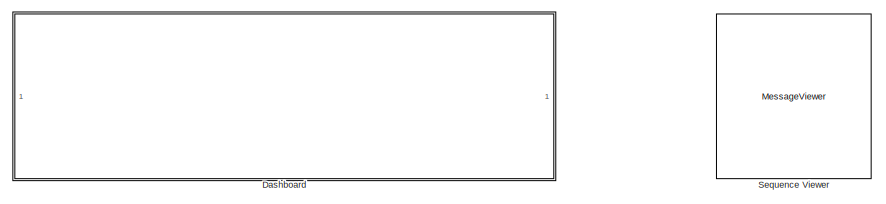
[diagram: root canvas - part 1/5, top center region]
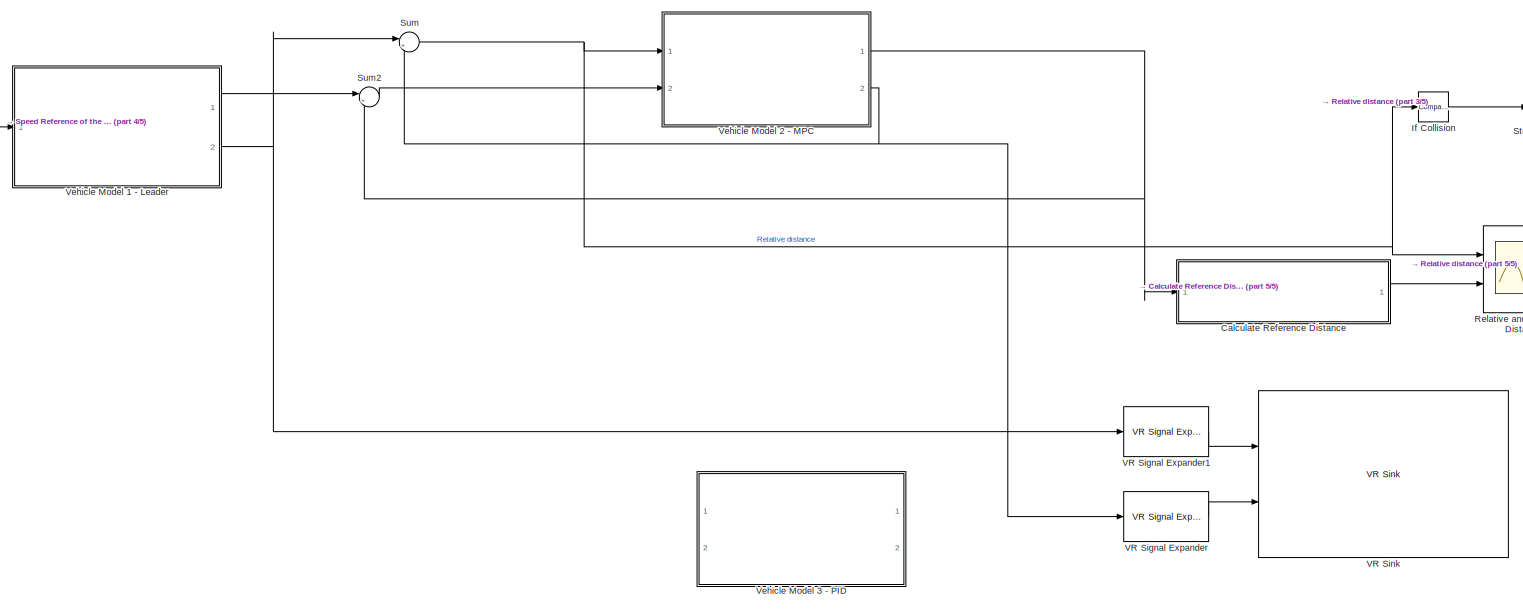
[diagram: root canvas - part 2/5, full width, middle band]
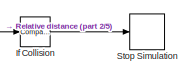
[diagram: root canvas - part 3/5, middle right region]
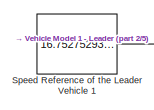
[diagram: root canvas - part 4/5, middle left region]
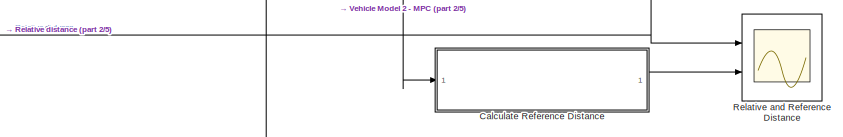
[diagram: root canvas - part 5/5, middle right region]
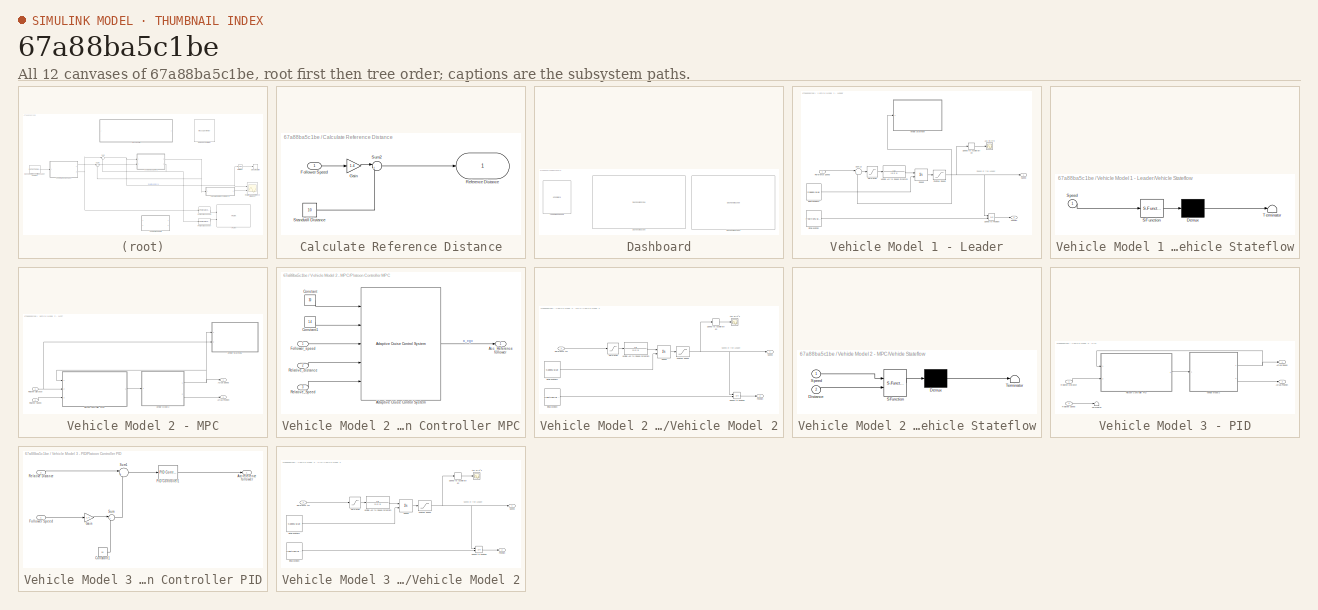
[diagram: thumbnail index - all 12 canvases of the model, root first then tree order]
MODEL slx_67a88ba5c1be
KIND model
CONFIG AbsTol = auto
CONFIG EnableMultiTasking = off
CONFIG FixedStep = auto
CONFIG MaxStep = auto
CONFIG MinStep = auto
CONFIG RelTol = 1e-3
CONFIG SampleTimeConstraint = Unconstrained
CONFIG Solver = VariableStepAuto
CONFIG SolverName = VariableStepAuto
CONFIG StartTime = 0.0
CONFIG StopTime = 100
BLOCK [SubSystem] Calculate Reference Distance
  Ports = [1, 1]
  RequestExecContextInheritance = off
BLOCK [Inport] Calculate Reference Distance/Follower Speed
BLOCK [Gain] Calculate Reference Distance/Gain
  Gain = 1.4
BLOCK [Outport] Calculate Reference Distance/Reference Distance
  VectorParamsAs1DForOutWhenUnconnected = off
BLOCK [Constant] Calculate Reference Distance/Standstill Distance
  Value = 10
BLOCK [Sum] Calculate Reference Distance/Sum2
  Inputs = |++
  Ports = [2, 1]
BLOCK [SubSystem] Dashboard
  Ports = []
  RequestExecContextInheritance = off
BLOCK [DashboardScope] Dashboard/Dashboard Scope
  Ymax = 200
  Ymin = -5
BLOCK [DashboardScope] Dashboard/Dashboard Scope1
  Ymax = 200
  Ymin = -5
BLOCK [KnobBlock] Dashboard/Leader Speed Knob
  ScaleMax = 50
  TickInterval = 5
BLOCK [Reference] If Collision  REF=simulink/Logic and Bit
Operations/Compare
To Constant
  Ports = [1, 1]
  SourceBlock = simulink/Logic and Bit\nOperations/Compare\nTo Constant
  SourceProductBaseCode = SL
  SourceType = Compare To Constant
BLOCK [Scope] Relative and Reference Distance
  Floating = off
  NumInputPorts = 2
  Ports = [2]
  ScopeSpecificationString = Simulink.scopes.TimeScopeBlockCfg('CurrentConfiguration', extmgr.ConfigurationSet(extmgr.Configuration('Core','General UI',true),extmgr.Configuration('Core','Source UI',true),extmgr.Configuration('Sources','WiredSimulink',true,'DataLoggingVariableName','ScopeData1'),extmgr.Configuration('Visuals','Time Domain',true,'SerializedDisplays',{struct('MinYLimReal','5.98138','MaxYLimReal','14.06125','YLab...<+1480ch>
BLOCK [MessageViewer] Sequence Viewer
BLOCK [Constant] Speed Reference of the Leader Vehicle 1
  Value = 16.75275293986003
BLOCK [Stop] Stop Simulation
BLOCK [Sum] Sum
  Inputs = |+-
  Ports = [2, 1]
BLOCK [Sum] Sum2
  Inputs = |+-
  Ports = [2, 1]
BLOCK [Reference] VR Signal Expander  REF=vrlib/VR Signal Expander
  Ports = [1, 1]
  SourceBlock = vrlib/VR Signal Expander
  SourceProductBaseCode = SL
  SourceType = VR Signal Expander
BLOCK [Reference] VR Signal Expander1  REF=vrlib/VR Signal Expander
  Ports = [1, 1]
  SourceBlock = vrlib/VR Signal Expander
  SourceProductBaseCode = SL
  SourceType = VR Signal Expander
BLOCK [Reference] VR Sink  REF=vrlib/VR Sink
  InstantiateOnLoad = on
  Ports = [2]
  SourceBlock = vrlib/VR Sink
  SourceProductBaseCode = SL
  SourceType = Virtual Reality Sink
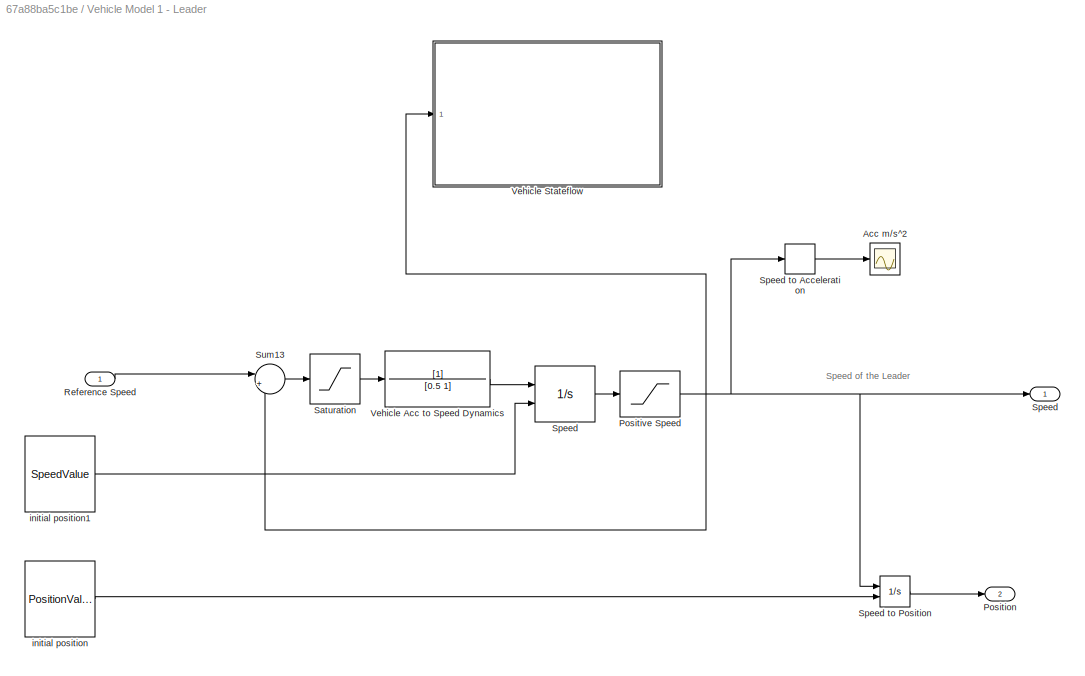
BLOCK [SubSystem] Vehicle Model 1 - Leader
  Ports = [1, 2]
  RequestExecContextInheritance = off
BLOCK [Scope] Vehicle Model 1 - Leader/Acc m//s^2
  Floating = off
  NumInputPorts = 1
  Ports = [1]
  ScopeSpecificationString = Simulink.scopes.TimeScopeBlockCfg('CurrentConfiguration', extmgr.ConfigurationSet(extmgr.Configuration('Core','General UI',true),extmgr.Configuration('Core','Source UI',true),extmgr.Configuration('Sources','WiredSimulink',true,'DataLoggingVariableName','ScopeData1','DataLoggingLimitDataPoints',true,'DataLoggingSaveFormat','Array','DataLoggingDecimation','1','DataLoggingDecimateData',true),extmgr.C...<+1505ch>
BLOCK [Outport] Vehicle Model 1 - Leader/Position
  Port = 2
  VectorParamsAs1DForOutWhenUnconnected = off
BLOCK [Saturate] Vehicle Model 1 - Leader/Positive Speed
  LowerLimit = 0
  UpperLimit = inf
BLOCK [Inport] Vehicle Model 1 - Leader/Reference Speed
BLOCK [Saturate] Vehicle Model 1 - Leader/Saturation
  LowerLimit = -3
  UpperLimit = 2
BLOCK [Integrator] Vehicle Model 1 - Leader/Speed
  InitialCondition = SpeedValue
  InitialConditionSource = external
  Ports = [2, 1]
BLOCK [Outport] Vehicle Model 1 - Leader/Speed 
  VectorParamsAs1DForOutWhenUnconnected = off
BLOCK [Derivative] Vehicle Model 1 - Leader/Speed to Acceleration
BLOCK [Integrator] Vehicle Model 1 - Leader/Speed to Position
  InitialCondition = Vehicle1.position
  InitialConditionSource = external
  Ports = [2, 1]
BLOCK [Sum] Vehicle Model 1 - Leader/Sum13
  Inputs = |+-
  Ports = [2, 1]
BLOCK [TransferFcn] Vehicle Model 1 - Leader/Vehicle Acc to Speed Dynamics
  Denominator = [0.5 1]
BLOCK [SubSystem] Vehicle Model 1 - Leader/Vehicle Stateflow
  ErrorFcn = Stateflow.Translate.translate
  PermitHierarchicalResolution = ExplicitOnly
  Ports = [1]
  RequestExecContextInheritance = off
  SFBlockType = Chart
  TreatAsAtomicUnit = on
BLOCK [Demux] Vehicle Model 1 - Leader/Vehicle Stateflow/ Demux 
  Outputs = 1
  Ports = [1, 1]
BLOCK [S-Function] Vehicle Model 1 - Leader/Vehicle Stateflow/ SFunction 
  EnableBusSupport = off
  FunctionName = sf_sfun
  PortCounts = [1 1]
  Ports = [1, 1]
  SFcnIsStateOwnerBlock = off
  SFunctionDeploymentMode = off
  Tag = Stateflow S-Function 3
BLOCK [Terminator] Vehicle Model 1 - Leader/Vehicle Stateflow/ Terminator 
BLOCK [Inport] Vehicle Model 1 - Leader/Vehicle Stateflow/Speed
BLOCK [Constant] Vehicle Model 1 - Leader/initial position
  Value = PositionValue
BLOCK [Constant] Vehicle Model 1 - Leader/initial position1
  Value = SpeedValue
BLOCK [SubSystem] Vehicle Model 2 - MPC
  Ports = [2, 2]
  RequestExecContextInheritance = off
BLOCK [Outport] Vehicle Model 2 - MPC/Actual Position
  Port = 2
  VectorParamsAs1DForOutWhenUnconnected = off
BLOCK [Outport] Vehicle Model 2 - MPC/Actual Speed
  VectorParamsAs1DForOutWhenUnconnected = off
BLOCK [SubSystem] Vehicle Model 2 - MPC/Platoon Controller MPC
  Ports = [3, 1]
  RequestExecContextInheritance = off
BLOCK [Outport] Vehicle Model 2 - MPC/Platoon Controller MPC/Acc_Reference follower
  VectorParamsAs1DForOutWhenUnconnected = off
BLOCK [Reference] Vehicle Model 2 - MPC/Platoon Controller MPC/Adaptive Cruise Control System  REF=mpcadaslib/Adaptive Cruise Control System
  Ports = [5, 1]
  SourceBlock = mpcadaslib/Adaptive Cruise Control System
  SourceProductBaseCode = MP
  SourceType = Adaptive cruise control (ACC) system
BLOCK [Constant] Vehicle Model 2 - MPC/Platoon Controller MPC/Constant
  Value = 30
BLOCK [Constant] Vehicle Model 2 - MPC/Platoon Controller MPC/Constant1
  Value = 1.4
BLOCK [Inport] Vehicle Model 2 - MPC/Platoon Controller MPC/Follower_speed
BLOCK [Inport] Vehicle Model 2 - MPC/Platoon Controller MPC/Relative_Speed
  Port = 3
BLOCK [Inport] Vehicle Model 2 - MPC/Platoon Controller MPC/Relative_distance
  Port = 2
BLOCK [Inport] Vehicle Model 2 - MPC/Relative Distance
BLOCK [Inport] Vehicle Model 2 - MPC/Relative Speed
  Port = 2
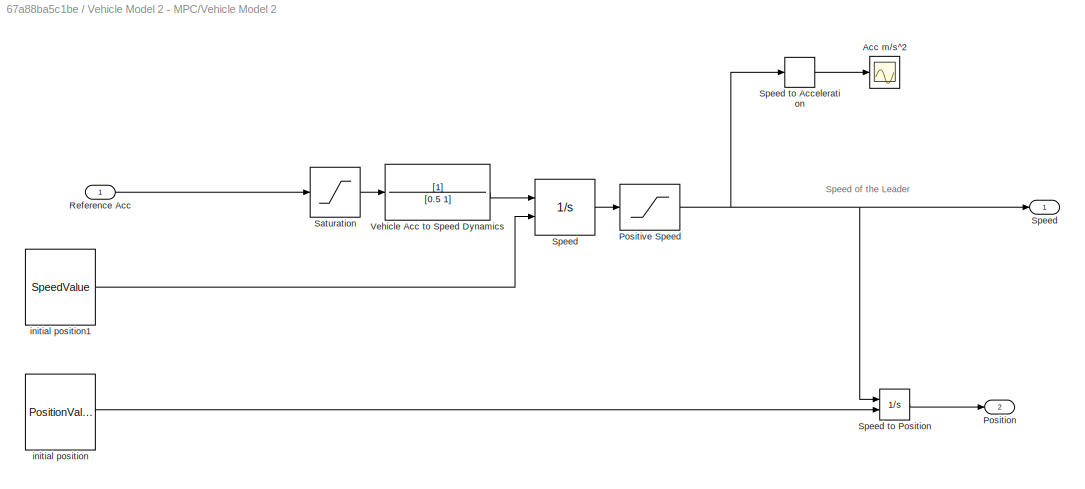
BLOCK [SubSystem] Vehicle Model 2 - MPC/Vehicle Model 2
  Ports = [1, 2]
  RequestExecContextInheritance = off
BLOCK [Scope] Vehicle Model 2 - MPC/Vehicle Model 2/Acc m//s^2
  Floating = off
  NumInputPorts = 1
  Ports = [1]
  ScopeSpecificationString = Simulink.scopes.TimeScopeBlockCfg('CurrentConfiguration', extmgr.ConfigurationSet(extmgr.Configuration('Core','General UI',true),extmgr.Configuration('Core','Source UI',true),extmgr.Configuration('Sources','WiredSimulink',true,'DataLoggingVariableName','ScopeData1','DataLoggingLimitDataPoints',true,'DataLoggingSaveFormat','Array','DataLoggingDecimation','1','DataLoggingDecimateData',true),extmgr.C...<+1505ch>
BLOCK [Outport] Vehicle Model 2 - MPC/Vehicle Model 2/Position
  Port = 2
  VectorParamsAs1DForOutWhenUnconnected = off
BLOCK [Saturate] Vehicle Model 2 - MPC/Vehicle Model 2/Positive Speed
  LowerLimit = 0
  UpperLimit = inf
BLOCK [Inport] Vehicle Model 2 - MPC/Vehicle Model 2/Reference Acc
BLOCK [Saturate] Vehicle Model 2 - MPC/Vehicle Model 2/Saturation
  LowerLimit = -3
  UpperLimit = 2
BLOCK [Integrator] Vehicle Model 2 - MPC/Vehicle Model 2/Speed
  InitialCondition = SpeedValue
  InitialConditionSource = external
  Ports = [2, 1]
BLOCK [Outport] Vehicle Model 2 - MPC/Vehicle Model 2/Speed 
  VectorParamsAs1DForOutWhenUnconnected = off
BLOCK [Derivative] Vehicle Model 2 - MPC/Vehicle Model 2/Speed to Acceleration
BLOCK [Integrator] Vehicle Model 2 - MPC/Vehicle Model 2/Speed to Position
  InitialCondition = Vehicle1.position
  InitialConditionSource = external
  Ports = [2, 1]
BLOCK [TransferFcn] Vehicle Model 2 - MPC/Vehicle Model 2/Vehicle Acc to Speed Dynamics
  Denominator = [0.5 1]
BLOCK [Constant] Vehicle Model 2 - MPC/Vehicle Model 2/initial position
  Value = PositionValue
BLOCK [Constant] Vehicle Model 2 - MPC/Vehicle Model 2/initial position1
  Value = SpeedValue
BLOCK [SubSystem] Vehicle Model 2 - MPC/Vehicle Stateflow
  ErrorFcn = Stateflow.Translate.translate
  PermitHierarchicalResolution = ExplicitOnly
  Ports = [2]
  RequestExecContextInheritance = off
  SFBlockType = Chart
  TreatAsAtomicUnit = on
BLOCK [Demux] Vehicle Model 2 - MPC/Vehicle Stateflow/ Demux 
  Outputs = 1
  Ports = [1, 1]
BLOCK [S-Function] Vehicle Model 2 - MPC/Vehicle Stateflow/ SFunction 
  EnableBusSupport = off
  FunctionName = sf_sfun
  PortCounts = [2 1]
  Ports = [2, 1]
  SFcnIsStateOwnerBlock = off
  SFunctionDeploymentMode = off
  Tag = Stateflow S-Function 1
BLOCK [Terminator] Vehicle Model 2 - MPC/Vehicle Stateflow/ Terminator 
BLOCK [Inport] Vehicle Model 2 - MPC/Vehicle Stateflow/Distance
  Port = 2
BLOCK [Inport] Vehicle Model 2 - MPC/Vehicle Stateflow/Speed
BLOCK [SubSystem] Vehicle Model 3 - PID
  Commented = on
  Ports = [2, 2]
  RequestExecContextInheritance = off
BLOCK [Outport] Vehicle Model 3 - PID/Actual Position
  Port = 2
  VectorParamsAs1DForOutWhenUnconnected = off
BLOCK [Outport] Vehicle Model 3 - PID/Actual Speed
  VectorParamsAs1DForOutWhenUnconnected = off
BLOCK [SubSystem] Vehicle Model 3 - PID/Platoon Controller PID
  Ports = [2, 1]
  RequestExecContextInheritance = off
BLOCK [Outport] Vehicle Model 3 - PID/Platoon Controller PID/Acc reference follower
  VectorParamsAs1DForOutWhenUnconnected = off
BLOCK [Constant] Vehicle Model 3 - PID/Platoon Controller PID/Constant1
  Value = 10
BLOCK [Inport] Vehicle Model 3 - PID/Platoon Controller PID/Follower Speed
BLOCK [Gain] Vehicle Model 3 - PID/Platoon Controller PID/Gain
  Gain = 1.4
BLOCK [Reference] Vehicle Model 3 - PID/Platoon Controller PID/PID Controller1  REF=simulink/Continuous/PID Controller
  Ports = [1, 1]
  SourceBlock = simulink/Continuous/PID Controller
  SourceProductBaseCode = SL
  SourceType = PID 1dof
BLOCK [Inport] Vehicle Model 3 - PID/Platoon Controller PID/Relative Distance
  Port = 2
BLOCK [Sum] Vehicle Model 3 - PID/Platoon Controller PID/Sum
  Inputs = |++
  Ports = [2, 1]
BLOCK [Sum] Vehicle Model 3 - PID/Platoon Controller PID/Sum1
  Inputs = |+-
  Ports = [2, 1]
BLOCK [Inport] Vehicle Model 3 - PID/Relative Distance
BLOCK [Inport] Vehicle Model 3 - PID/Relative Speed
  Port = 2
BLOCK [Terminator] Vehicle Model 3 - PID/Terminator
BLOCK [SubSystem] Vehicle Model 3 - PID/Vehicle Model 2
  Ports = [1, 2]
  RequestExecContextInheritance = off
BLOCK [Scope] Vehicle Model 3 - PID/Vehicle Model 2/Acc m//s^2
  Floating = off
  NumInputPorts = 1
  Ports = [1]
  ScopeSpecificationString = Simulink.scopes.TimeScopeBlockCfg('CurrentConfiguration', extmgr.ConfigurationSet(extmgr.Configuration('Core','General UI',true),extmgr.Configuration('Core','Source UI',true),extmgr.Configuration('Sources','WiredSimulink',true,'DataLoggingVariableName','ScopeData1','DataLoggingLimitDataPoints',true,'DataLoggingSaveFormat','Array','DataLoggingDecimation','1','DataLoggingDecimateData',true),extmgr.C...<+1544ch>
BLOCK [Outport] Vehicle Model 3 - PID/Vehicle Model 2/Position
  Port = 2
  VectorParamsAs1DForOutWhenUnconnected = off
BLOCK [Saturate] Vehicle Model 3 - PID/Vehicle Model 2/Positive Speed
  LowerLimit = 0
  UpperLimit = inf
BLOCK [Inport] Vehicle Model 3 - PID/Vehicle Model 2/Reference Acc
BLOCK [Saturate] Vehicle Model 3 - PID/Vehicle Model 2/Saturation
  LowerLimit = -3
  UpperLimit = 2
BLOCK [Integrator] Vehicle Model 3 - PID/Vehicle Model 2/Speed
  InitialCondition = SpeedValue
  InitialConditionSource = external
  Ports = [2, 1]
BLOCK [Outport] Vehicle Model 3 - PID/Vehicle Model 2/Speed 
  VectorParamsAs1DForOutWhenUnconnected = off
BLOCK [Derivative] Vehicle Model 3 - PID/Vehicle Model 2/Speed to Acceleration
BLOCK [Integrator] Vehicle Model 3 - PID/Vehicle Model 2/Speed to Position
  InitialCondition = Vehicle1.position
  InitialConditionSource = external
  Ports = [2, 1]
BLOCK [TransferFcn] Vehicle Model 3 - PID/Vehicle Model 2/Vehicle Acc to Speed Dynamics
  Denominator = [0.5 1]
BLOCK [Constant] Vehicle Model 3 - PID/Vehicle Model 2/initial position
  Value = PositionValue
BLOCK [Constant] Vehicle Model 3 - PID/Vehicle Model 2/initial position1
  Value = SpeedValue
ANNOTATION Vehicle Model 1 - Leader: Speed of the Leader
ANNOTATION Vehicle Model 2 - MPC/Vehicle Model 2: Speed of the Leader
ANNOTATION Vehicle Model 3 - PID/Vehicle Model 2: Speed of the Leader
LINE Calculate Reference Distance/Follower Speed:1 -> Calculate Reference Distance/Gain:1
LINE Calculate Reference Distance/Gain:1 -> Calculate Reference Distance/Sum2:1
LINE Calculate Reference Distance/Standstill Distance:1 -> Calculate Reference Distance/Sum2:2
LINE Calculate Reference Distance/Sum2:1 -> Calculate Reference Distance/Reference Distance:1
LINE Calculate Reference Distance:1 -> Relative and Reference Distance:2
LINE If Collision:1 -> Stop Simulation:1
LINE Speed Reference of the Leader Vehicle 1:1 -> Vehicle Model 1 - Leader:1
LINE Sum2:1 -> Vehicle Model 2 - MPC:2
NET Sum:1 -> If Collision:1, Relative and Reference Distance:1, Vehicle Model 2 - MPC:1
LINE VR Signal Expander1:1 -> VR Sink:1
LINE VR Signal Expander:1 -> VR Sink:2
NET Vehicle Model 1 - Leader/Positive Speed:1 -> Vehicle Model 1 - Leader/Speed :1, Vehicle Model 1 - Leader/Speed to Acceleration:1, Vehicle Model 1 - Leader/Speed to Position:1, Vehicle Model 1 - Leader/Sum13:2, Vehicle Model 1 - Leader/Vehicle Stateflow:1
LINE Vehicle Model 1 - Leader/Reference Speed:1 -> Vehicle Model 1 - Leader/Sum13:1
LINE Vehicle Model 1 - Leader/Saturation:1 -> Vehicle Model 1 - Leader/Vehicle Acc to Speed Dynamics:1
LINE Vehicle Model 1 - Leader/Speed to Acceleration:1 -> Vehicle Model 1 - Leader/Acc m//s^2:1
LINE Vehicle Model 1 - Leader/Speed to Position:1 -> Vehicle Model 1 - Leader/Position:1
LINE Vehicle Model 1 - Leader/Speed:1 -> Vehicle Model 1 - Leader/Positive Speed:1
LINE Vehicle Model 1 - Leader/Sum13:1 -> Vehicle Model 1 - Leader/Saturation:1
LINE Vehicle Model 1 - Leader/Vehicle Acc to Speed Dynamics:1 -> Vehicle Model 1 - Leader/Speed:1
LINE Vehicle Model 1 - Leader/initial position1:1 -> Vehicle Model 1 - Leader/Speed:2
LINE Vehicle Model 1 - Leader/initial position:1 -> Vehicle Model 1 - Leader/Speed to Position:2
LINE Vehicle Model 1 - Leader:1 -> Sum2:1
NET Vehicle Model 1 - Leader:2 -> Sum:1, VR Signal Expander1:1
LINE Vehicle Model 2 - MPC/Platoon Controller MPC/Adaptive Cruise Control System:1 -> Vehicle Model 2 - MPC/Platoon Controller MPC/Acc_Reference follower:1
LINE Vehicle Model 2 - MPC/Platoon Controller MPC/Constant1:1 -> Vehicle Model 2 - MPC/Platoon Controller MPC/Adaptive Cruise Control System:2
LINE Vehicle Model 2 - MPC/Platoon Controller MPC/Constant:1 -> Vehicle Model 2 - MPC/Platoon Controller MPC/Adaptive Cruise Control System:1
LINE Vehicle Model 2 - MPC/Platoon Controller MPC/Follower_speed:1 -> Vehicle Model 2 - MPC/Platoon Controller MPC/Adaptive Cruise Control System:3
LINE Vehicle Model 2 - MPC/Platoon Controller MPC/Relative_Speed:1 -> Vehicle Model 2 - MPC/Platoon Controller MPC/Adaptive Cruise Control System:5
LINE Vehicle Model 2 - MPC/Platoon Controller MPC/Relative_distance:1 -> Vehicle Model 2 - MPC/Platoon Controller MPC/Adaptive Cruise Control System:4
LINE Vehicle Model 2 - MPC/Platoon Controller MPC:1 -> Vehicle Model 2 - MPC/Vehicle Model 2:1
NET Vehicle Model 2 - MPC/Relative Distance:1 -> Vehicle Model 2 - MPC/Platoon Controller MPC:2, Vehicle Model 2 - MPC/Vehicle Stateflow:2
LINE Vehicle Model 2 - MPC/Relative Speed:1 -> Vehicle Model 2 - MPC/Platoon Controller MPC:3
NET Vehicle Model 2 - MPC/Vehicle Model 2/Positive Speed:1 -> Vehicle Model 2 - MPC/Vehicle Model 2/Speed :1, Vehicle Model 2 - MPC/Vehicle Model 2/Speed to Acceleration:1, Vehicle Model 2 - MPC/Vehicle Model 2/Speed to Position:1
LINE Vehicle Model 2 - MPC/Vehicle Model 2/Reference Acc:1 -> Vehicle Model 2 - MPC/Vehicle Model 2/Saturation:1
LINE Vehicle Model 2 - MPC/Vehicle Model 2/Saturation:1 -> Vehicle Model 2 - MPC/Vehicle Model 2/Vehicle Acc to Speed Dynamics:1
LINE Vehicle Model 2 - MPC/Vehicle Model 2/Speed to Acceleration:1 -> Vehicle Model 2 - MPC/Vehicle Model 2/Acc m//s^2:1
LINE Vehicle Model 2 - MPC/Vehicle Model 2/Speed to Position:1 -> Vehicle Model 2 - MPC/Vehicle Model 2/Position:1
LINE Vehicle Model 2 - MPC/Vehicle Model 2/Speed:1 -> Vehicle Model 2 - MPC/Vehicle Model 2/Positive Speed:1
LINE Vehicle Model 2 - MPC/Vehicle Model 2/Vehicle Acc to Speed Dynamics:1 -> Vehicle Model 2 - MPC/Vehicle Model 2/Speed:1
LINE Vehicle Model 2 - MPC/Vehicle Model 2/initial position1:1 -> Vehicle Model 2 - MPC/Vehicle Model 2/Speed:2
LINE Vehicle Model 2 - MPC/Vehicle Model 2/initial position:1 -> Vehicle Model 2 - MPC/Vehicle Model 2/Speed to Position:2
NET Vehicle Model 2 - MPC/Vehicle Model 2:1 -> Vehicle Model 2 - MPC/Actual Speed:1, Vehicle Model 2 - MPC/Platoon Controller MPC:1, Vehicle Model 2 - MPC/Vehicle Stateflow:1
LINE Vehicle Model 2 - MPC/Vehicle Model 2:2 -> Vehicle Model 2 - MPC/Actual Position:1
NET Vehicle Model 2 - MPC:1 -> Calculate Reference Distance:1, Sum2:2
NET Vehicle Model 2 - MPC:2 -> Sum:2, VR Signal Expander:1
LINE Vehicle Model 3 - PID/Platoon Controller PID/Constant1:1 -> Vehicle Model 3 - PID/Platoon Controller PID/Sum:2
LINE Vehicle Model 3 - PID/Platoon Controller PID/Follower Speed:1 -> Vehicle Model 3 - PID/Platoon Controller PID/Gain:1
LINE Vehicle Model 3 - PID/Platoon Controller PID/Gain:1 -> Vehicle Model 3 - PID/Platoon Controller PID/Sum:1
LINE Vehicle Model 3 - PID/Platoon Controller PID/PID Controller1:1 -> Vehicle Model 3 - PID/Platoon Controller PID/Acc reference follower:1
LINE Vehicle Model 3 - PID/Platoon Controller PID/Relative Distance:1 -> Vehicle Model 3 - PID/Platoon Controller PID/Sum1:1
LINE Vehicle Model 3 - PID/Platoon Controller PID/Sum1:1 -> Vehicle Model 3 - PID/Platoon Controller PID/PID Controller1:1
LINE Vehicle Model 3 - PID/Platoon Controller PID/Sum:1 -> Vehicle Model 3 - PID/Platoon Controller PID/Sum1:2
LINE Vehicle Model 3 - PID/Platoon Controller PID:1 -> Vehicle Model 3 - PID/Vehicle Model 2:1
LINE Vehicle Model 3 - PID/Relative Distance:1 -> Vehicle Model 3 - PID/Platoon Controller PID:2
LINE Vehicle Model 3 - PID/Relative Speed:1 -> Vehicle Model 3 - PID/Terminator:1
NET Vehicle Model 3 - PID/Vehicle Model 2/Positive Speed:1 -> Vehicle Model 3 - PID/Vehicle Model 2/Speed :1, Vehicle Model 3 - PID/Vehicle Model 2/Speed to Acceleration:1, Vehicle Model 3 - PID/Vehicle Model 2/Speed to Position:1
LINE Vehicle Model 3 - PID/Vehicle Model 2/Reference Acc:1 -> Vehicle Model 3 - PID/Vehicle Model 2/Saturation:1
LINE Vehicle Model 3 - PID/Vehicle Model 2/Saturation:1 -> Vehicle Model 3 - PID/Vehicle Model 2/Vehicle Acc to Speed Dynamics:1
LINE Vehicle Model 3 - PID/Vehicle Model 2/Speed to Acceleration:1 -> Vehicle Model 3 - PID/Vehicle Model 2/Acc m//s^2:1
LINE Vehicle Model 3 - PID/Vehicle Model 2/Speed to Position:1 -> Vehicle Model 3 - PID/Vehicle Model 2/Position:1
LINE Vehicle Model 3 - PID/Vehicle Model 2/Speed:1 -> Vehicle Model 3 - PID/Vehicle Model 2/Positive Speed:1
LINE Vehicle Model 3 - PID/Vehicle Model 2/Vehicle Acc to Speed Dynamics:1 -> Vehicle Model 3 - PID/Vehicle Model 2/Speed:1
LINE Vehicle Model 3 - PID/Vehicle Model 2/initial position1:1 -> Vehicle Model 3 - PID/Vehicle Model 2/Speed:2
LINE Vehicle Model 3 - PID/Vehicle Model 2/initial position:1 -> Vehicle Model 3 - PID/Vehicle Model 2/Speed to Position:2
NET Vehicle Model 3 - PID/Vehicle Model 2:1 -> Vehicle Model 3 - PID/Actual Speed:1, Vehicle Model 3 - PID/Platoon Controller PID:1
LINE Vehicle Model 3 - PID/Vehicle Model 2:2 -> Vehicle Model 3 - PID/Actual Position:1
note: NET lines group one-source signal fan-out (src -> all destinations, sorted); 1:1 wires keep LINE
CHART Vehicle Model 2 - MPC/Vehicle Stateflow states=8 transitions=9
  STATE_LABEL 'VEHICLE_STOPS\n'
  STATE_LABEL 'VEHICLE_MOVING'
  STATE_LABEL 'SpeedSituation'
  STATE_LABEL 'Slow'
  STATE_LABEL 'Fast'
  STATE_LABEL '[Speed<10]'
  STATE_LABEL '[Speed>10]'
  STATE_LABEL 'DrivingMode'
  STATE_LABEL 'Close'
  STATE_LABEL 'Far'
  STATE_LABEL '[Distance<50]'
  STATE_LABEL '[Distance>50]'
  STATE_LABEL 'SpeedSituation'
  STATE_LABEL 'Slow'
  STATE_LABEL 'Fast'
  STATE_LABEL '[Speed<10]'
  STATE_LABEL '[Speed>10]'
  STATE_LABEL 'Slow'
  STATE_LABEL 'Fast'
  STATE_LABEL 'DrivingMode'
  STATE_LABEL 'Close'
  STATE_LABEL 'Far'
  STATE_LABEL '[Distance<50]'
  STATE_LABEL '[Distance>50]'
  STATE_LABEL 'Close'
  STATE_LABEL 'Far'
CHART Vehicle Model 1 - Leader/Vehicle Stateflow states=4 transitions=6
  STATE_LABEL 'VEHICLE_STOPS\n'
  STATE_LABEL 'VEHICLE_MOVING'
  STATE_LABEL 'Slow'
  STATE_LABEL 'Fast'
  STATE_LABEL '[Speed<10]'
  STATE_LABEL '[Speed>10]'
  STATE_LABEL 'Slow'
  STATE_LABEL 'Fast'
